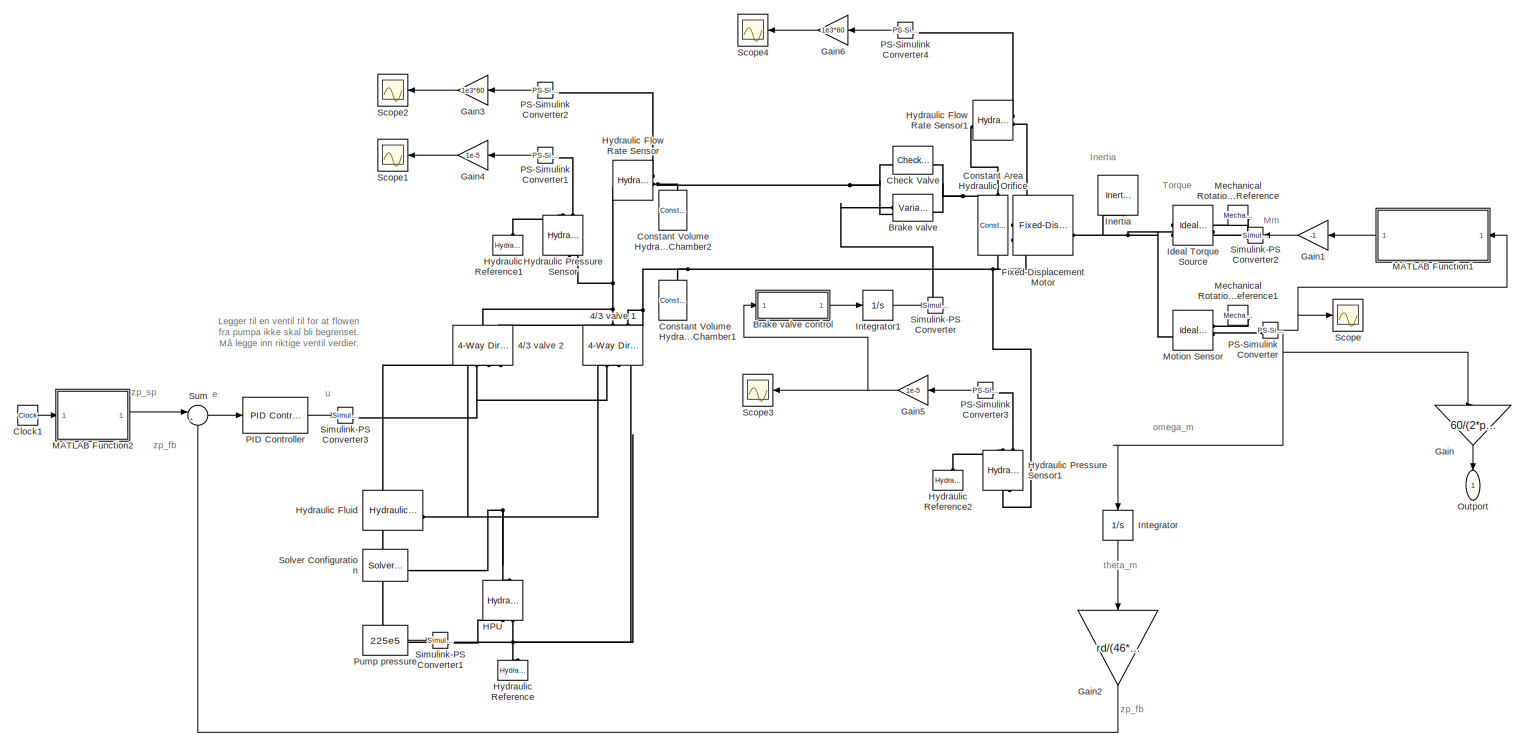
[diagram: root canvas - part 1/1, most of the canvas]
MODEL slx_333f0d7081e0
KIND model
CONFIG AbsTol = auto
CONFIG EnableMultiTasking = off
CONFIG FixedStep = auto
CONFIG MaxStep = auto
CONFIG MinStep = auto
CONFIG RelTol = 1e-3
CONFIG SampleTimeConstraint = Unconstrained
CONFIG SolverName = VariableStepAuto
CONFIG StartTime = 0.0
CONFIG StopTime = 20
WORKSPACE source: MATLAB code (in-file)
WORKSPACE rho = 860
WORKSPACE P_r = 70e5  (= 7000000)
WORKSPACE Cd = 0.7
WORKSPACE Q_r = 200/6e4  (= 0.00333333333333)
WORKSPACE AdMax = Q_r/Cd/sqrt(2/rho*P_r/2)
WORKSPACE g = 9.81
WORKSPACE zw = 0.8
WORKSPACE tw = 10
WORKSPACE ig = 46
WORKSPACE m = 9000
WORKSPACE mueq = 0.15
WORKSPACE dd = 0.45
WORKSPACE nyv = 0.92
WORKSPACE rd = dd/2  (= 0.225)
WORKSPACE omega0 = 5
WORKSPACE omegap = 1500
WORKSPACE nsh = 3
WORKSPACE gearrationsh = nsh.*2
BLOCK [Reference] 4//3 valve 1  REF=sh_lib/Valves/Directional Valves/4-Way Directional
Valve
  NameLocation = right
  SourceBlock = sh_lib/Valves/Directional Valves/4-Way Directional\nValve
  SourceType = 4-Way Directional\nValve
BLOCK [Reference] 4//3 valve 2  REF=sh_lib/Valves/Directional Valves/4-Way Directional
Valve
  NameLocation = right
  SourceBlock = sh_lib/Valves/Directional Valves/4-Way Directional\nValve
  SourceType = 4-Way Directional\nValve
BLOCK [Reference] Brake valve  REF=sh_lib/Orifices/Variable Orifice
  SourceBlock = sh_lib/Orifices/Variable Orifice
  SourceType = Variable Orifice
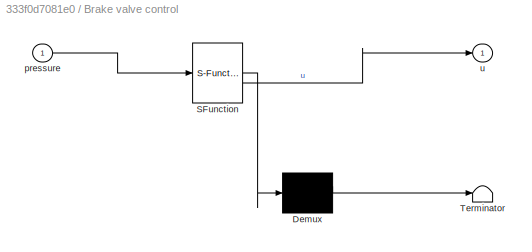
BLOCK [SubSystem] Brake valve control
  ErrorFcn = Stateflow.Translate.translate
  LibrarySourceBlock = simulink/User-Defined\nFunctions/MATLAB Function
  PermitHierarchicalResolution = ExplicitOnly
  SFBlockType = MATLAB Function
  TreatAsAtomicUnit = on
BLOCK [Demux] Brake valve control/ Demux 
  Outputs = 1
BLOCK [S-Function] Brake valve control/ SFunction 
  EnableBusSupport = on
  FunctionName = sf_sfun
  PortCounts = [1 2]
  SFcnIsStateOwnerBlock = off
  SFunctionDeploymentMode = off
  Tag = Stateflow S-Function 2
BLOCK [Terminator] Brake valve control/ Terminator 
BLOCK [Inport] Brake valve control/pressure
BLOCK [Outport] Brake valve control/u
BLOCK [Reference] Check Valve  REF=sh_lib/Valves/Directional Valves/Check Valve
  SourceBlock = sh_lib/Valves/Directional Valves/Check Valve
  SourceType = Check Valve
BLOCK [Clock] Clock1
BLOCK [Reference] Constant Area Hydraulic Orifice  REF=fl_lib/Hydraulic/Hydraulic Elements/Constant Area
Hydraulic Orifice
  NameLocation = left
  SourceBlock = fl_lib/Hydraulic/Hydraulic Elements/Constant Area\nHydraulic Orifice
  SourceType = Constant Area\nHydraulic Orifice
BLOCK [Reference] Constant Volume Hydraulic Chamber1  REF=fl_lib/Hydraulic/Hydraulic Elements/Constant Volume
Hydraulic Chamber
  NameLocation = right
  SourceBlock = fl_lib/Hydraulic/Hydraulic Elements/Constant Volume\nHydraulic Chamber
  SourceType = Constant Volume\nHydraulic Chamber
BLOCK [Reference] Constant Volume Hydraulic Chamber2  REF=fl_lib/Hydraulic/Hydraulic Elements/Constant Volume
Hydraulic Chamber
  NameLocation = right
  SourceBlock = fl_lib/Hydraulic/Hydraulic Elements/Constant Volume\nHydraulic Chamber
  SourceType = Constant Volume\nHydraulic Chamber
BLOCK [Reference] Fixed-Displacement Motor  REF=sh_lib/Pumps and Motors/Fixed-Displacement
Motor
  SourceBlock = sh_lib/Pumps and Motors/Fixed-Displacement\nMotor
  SourceType = Fixed-Displacement\nMotor
BLOCK [Gain] Gain
  Gain = 60/(2*pi)
  NameLocation = left
BLOCK [Gain] Gain1
  Gain = -1
  NameLocation = top
BLOCK [Gain] Gain2
  Gain = rd/(46*6)
  NameLocation = left
BLOCK [Gain] Gain3
  Gain = 1e3*60
  NameLocation = top
BLOCK [Gain] Gain4
  Gain = 1e-5
  NameLocation = top
BLOCK [Gain] Gain5
  Gain = 1e-5
  NameLocation = top
BLOCK [Gain] Gain6
  Gain = 1e3*60
  NameLocation = top
BLOCK [Reference] HPU  REF=fl_lib/Hydraulic/Hydraulic Sources/Hydraulic Pressure
Source
  NameLocation = right
  SourceBlock = fl_lib/Hydraulic/Hydraulic Sources/Hydraulic Pressure\nSource
  SourceType = Hydraulic Pressure\nSource
BLOCK [Reference] Hydraulic Flow Rate Sensor  REF=fl_lib/Hydraulic/Hydraulic Sensors/Hydraulic Flow Rate
Sensor
  SourceBlock = fl_lib/Hydraulic/Hydraulic Sensors/Hydraulic Flow Rate\nSensor
  SourceType = Hydraulic Flow Rate\nSensor
BLOCK [Reference] Hydraulic Flow Rate Sensor1  REF=fl_lib/Hydraulic/Hydraulic Sensors/Hydraulic Flow Rate
Sensor
  SourceBlock = fl_lib/Hydraulic/Hydraulic Sensors/Hydraulic Flow Rate\nSensor
  SourceType = Hydraulic Flow Rate\nSensor
BLOCK [Reference] Hydraulic Fluid  REF=sh_lib/Hydraulic Utilities/Hydraulic Fluid
  SourceBlock = sh_lib/Hydraulic Utilities/Hydraulic Fluid
  SourceType = Hydraulic Fluid
BLOCK [Reference] Hydraulic Pressure Sensor  REF=fl_lib/Hydraulic/Hydraulic Sensors/Hydraulic Pressure
Sensor
  NameLocation = right
  SourceBlock = fl_lib/Hydraulic/Hydraulic Sensors/Hydraulic Pressure\nSensor
  SourceType = Hydraulic Pressure\nSensor
BLOCK [Reference] Hydraulic Pressure Sensor1  REF=fl_lib/Hydraulic/Hydraulic Sensors/Hydraulic Pressure
Sensor
  NameLocation = right
  SourceBlock = fl_lib/Hydraulic/Hydraulic Sensors/Hydraulic Pressure\nSensor
  SourceType = Hydraulic Pressure\nSensor
BLOCK [Reference] Hydraulic Reference  REF=fl_lib/Hydraulic/Hydraulic Elements/Hydraulic Reference
  NameLocation = right
  SourceBlock = fl_lib/Hydraulic/Hydraulic Elements/Hydraulic Reference
  SourceType = Hydraulic Reference
BLOCK [Reference] Hydraulic Reference1  REF=fl_lib/Hydraulic/Hydraulic Elements/Hydraulic Reference
  NameLocation = right
  SourceBlock = fl_lib/Hydraulic/Hydraulic Elements/Hydraulic Reference
  SourceType = Hydraulic Reference
BLOCK [Reference] Hydraulic Reference2  REF=fl_lib/Hydraulic/Hydraulic Elements/Hydraulic Reference
  NameLocation = right
  SourceBlock = fl_lib/Hydraulic/Hydraulic Elements/Hydraulic Reference
  SourceType = Hydraulic Reference
BLOCK [Reference] Ideal Torque Source  REF=fl_lib/Mechanical/Mechanical Sources/Ideal Torque Source
  NameLocation = top
  SourceBlock = fl_lib/Mechanical/Mechanical Sources/Ideal Torque Source
  SourceType = Ideal Torque Source
BLOCK [Reference] Inertia  REF=fl_lib/Mechanical/Rotational Elements/Inertia
  NameLocation = left
  SourceBlock = fl_lib/Mechanical/Rotational Elements/Inertia
  SourceType = Inertia
  Tag = Factory Generic
BLOCK [Integrator] Integrator
  NameLocation = left
BLOCK [Integrator] Integrator1
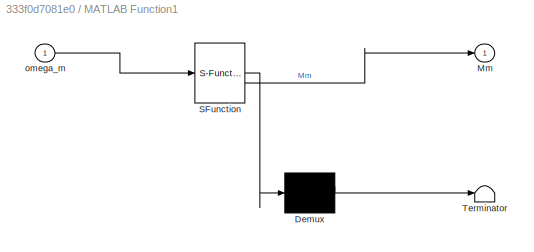
BLOCK [SubSystem] MATLAB Function1
  ErrorFcn = Stateflow.Translate.translate
  LibrarySourceBlock = simulink/User-Defined\nFunctions/MATLAB Function
  NameLocation = top
  PermitHierarchicalResolution = ExplicitOnly
  SFBlockType = MATLAB Function
  TreatAsAtomicUnit = on
BLOCK [Demux] MATLAB Function1/ Demux 
  Outputs = 1
BLOCK [S-Function] MATLAB Function1/ SFunction 
  EnableBusSupport = on
  FunctionName = sf_sfun
  PortCounts = [1 2]
  SFcnIsStateOwnerBlock = off
  SFunctionDeploymentMode = off
  Tag = Stateflow S-Function 1
BLOCK [Terminator] MATLAB Function1/ Terminator 
BLOCK [Outport] MATLAB Function1/Mm
BLOCK [Inport] MATLAB Function1/omega_m
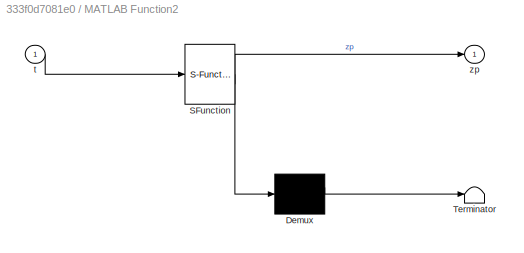
BLOCK [SubSystem] MATLAB Function2
  ErrorFcn = Stateflow.Translate.translate
  LibrarySourceBlock = simulink/User-Defined\nFunctions/MATLAB Function
  PermitHierarchicalResolution = ExplicitOnly
  SFBlockType = MATLAB Function
  TreatAsAtomicUnit = on
BLOCK [Demux] MATLAB Function2/ Demux 
  Outputs = 1
BLOCK [S-Function] MATLAB Function2/ SFunction 
  EnableBusSupport = on
  FunctionName = sf_sfun
  PortCounts = [1 2]
  SFcnIsStateOwnerBlock = off
  SFunctionDeploymentMode = off
  Tag = Stateflow S-Function 3
BLOCK [Terminator] MATLAB Function2/ Terminator 
BLOCK [Inport] MATLAB Function2/t
BLOCK [Outport] MATLAB Function2/zp
BLOCK [Reference] Mechanical Rotational Reference  REF=fl_lib/Mechanical/Rotational Elements/Mechanical
Rotational Reference
  NameLocation = top
  SourceBlock = fl_lib/Mechanical/Rotational Elements/Mechanical\nRotational Reference
  SourceType = Mechanical\nRotational Reference
BLOCK [Reference] Mechanical Rotational Reference1  REF=fl_lib/Mechanical/Rotational Elements/Mechanical
Rotational Reference
  NameLocation = top
  SourceBlock = fl_lib/Mechanical/Rotational Elements/Mechanical\nRotational Reference
  SourceType = Mechanical\nRotational Reference
BLOCK [Reference] Motion Sensor  REF=fl_lib/Mechanical/Mechanical Sensors/Ideal Rotational
Motion Sensor
  SourceBlock = fl_lib/Mechanical/Mechanical Sensors/Ideal Rotational\nMotion Sensor
  SourceType = Ideal Rotational\nMotion Sensor
  Tag = Factory Generic
BLOCK [Outport] Outport
  NameLocation = left
  SignalName = RPM
BLOCK [Reference] PID Controller  REF=slpidlib/PID Controller
  LibrarySourceBlock = simulink/Continuous/PID Controller
  SourceBlock = slpidlib/PID Controller
  SourceType = PID 1dof
BLOCK [Reference] PS-Simulink Converter  REF=nesl_utility/PS-Simulink
Converter
  SourceBlock = nesl_utility/PS-Simulink\nConverter
  SourceType = PS-Simulink\nConverter
BLOCK [Reference] PS-Simulink Converter1  REF=nesl_utility/PS-Simulink
Converter
  NameLocation = top
  SourceBlock = nesl_utility/PS-Simulink\nConverter
  SourceType = PS-Simulink\nConverter
BLOCK [Reference] PS-Simulink Converter2  REF=nesl_utility/PS-Simulink
Converter
  NameLocation = top
  SourceBlock = nesl_utility/PS-Simulink\nConverter
  SourceType = PS-Simulink\nConverter
BLOCK [Reference] PS-Simulink Converter3  REF=nesl_utility/PS-Simulink
Converter
  NameLocation = top
  SourceBlock = nesl_utility/PS-Simulink\nConverter
  SourceType = PS-Simulink\nConverter
BLOCK [Reference] PS-Simulink Converter4  REF=nesl_utility/PS-Simulink
Converter
  NameLocation = top
  SourceBlock = nesl_utility/PS-Simulink\nConverter
  SourceType = PS-Simulink\nConverter
BLOCK [Constant] Pump pressure
  Value = 225e5
BLOCK [Scope] Scope
  Floating = off
  NumInputPorts = 1
  ScopeSpecificationString = Simulink.scopes.TimeScopeBlockCfg('CurrentConfiguration', extmgr.ConfigurationSet(extmgr.Configuration('Core','General UI',true),extmgr.Configuration('Core','Source UI',true),extmgr.Configuration('Sources','WiredSimulink',true),extmgr.Configuration('Visuals','Time Domain',true,'SerializedDisplays',{struct('MinYLimReal','-690.31009','MaxYLimReal','784.25965','YLabelReal','','MinYLimMag',' 0.00000',...<+1384ch>
BLOCK [Scope] Scope1
  Floating = off
  NameLocation = top
  NumInputPorts = 1
  ScopeSpecificationString = Simulink.scopes.TimeScopeBlockCfg('CurrentConfiguration', extmgr.ConfigurationSet(extmgr.Configuration('Core','General UI',true),extmgr.Configuration('Core','Source UI',true),extmgr.Configuration('Sources','WiredSimulink',true,'DataLoggingVariableName','ScopeData1'),extmgr.Configuration('Visuals','Time Domain',true,'SerializedDisplays',{struct('MinYLimReal','-30.92137','MaxYLimReal','278.29237','Y...<+1403ch>
BLOCK [Scope] Scope2
  Floating = off
  NameLocation = top
  NumInputPorts = 1
  ScopeSpecificationString = Simulink.scopes.TimeScopeBlockCfg('CurrentConfiguration', extmgr.ConfigurationSet(extmgr.Configuration('Core','General UI',true),extmgr.Configuration('Core','Source UI',true),extmgr.Configuration('Sources','WiredSimulink',true,'DataLoggingVariableName','ScopeData2'),extmgr.Configuration('Visuals','Time Domain',true,'SerializedDisplays',{struct('MinYLimReal','-185.33606','MaxYLimReal','210.37591','...<+1407ch>
BLOCK [Scope] Scope3
  Floating = off
  NameLocation = top
  NumInputPorts = 1
  ScopeSpecificationString = Simulink.scopes.TimeScopeBlockCfg('CurrentConfiguration', extmgr.ConfigurationSet(extmgr.Configuration('Core','General UI',true),extmgr.Configuration('Core','Source UI',true),extmgr.Configuration('Sources','WiredSimulink',true,'DataLoggingVariableName','ScopeData1'),extmgr.Configuration('Visuals','Time Domain',true,'SerializedDisplays',{struct('MinYLimReal','-30.92137','MaxYLimReal','278.29237','Y...<+1403ch>
BLOCK [Scope] Scope4
  Floating = off
  NameLocation = top
  NumInputPorts = 1
  ScopeSpecificationString = Simulink.scopes.TimeScopeBlockCfg('CurrentConfiguration', extmgr.ConfigurationSet(extmgr.Configuration('Core','General UI',true),extmgr.Configuration('Core','Source UI',true),extmgr.Configuration('Sources','WiredSimulink',true,'DataLoggingVariableName','ScopeData2'),extmgr.Configuration('Visuals','Time Domain',true,'SerializedDisplays',{struct('MinYLimReal','-185.33606','MaxYLimReal','210.37591','...<+1407ch>
BLOCK [Reference] Simulink-PS Converter  REF=nesl_utility/Simulink-PS
Converter
  SourceBlock = nesl_utility/Simulink-PS\nConverter
  SourceType = Simulink-PS\nConverter
BLOCK [Reference] Simulink-PS Converter1  REF=nesl_utility/Simulink-PS
Converter
  SourceBlock = nesl_utility/Simulink-PS\nConverter
  SourceType = Simulink-PS\nConverter
BLOCK [Reference] Simulink-PS Converter2  REF=nesl_utility/Simulink-PS
Converter
  NameLocation = top
  SourceBlock = nesl_utility/Simulink-PS\nConverter
  SourceType = Simulink-PS\nConverter
BLOCK [Reference] Simulink-PS Converter3  REF=nesl_utility/Simulink-PS
Converter
  SourceBlock = nesl_utility/Simulink-PS\nConverter
  SourceType = Simulink-PS\nConverter
BLOCK [Reference] Solver Configuration  REF=nesl_utility/Solver
Configuration
  SourceBlock = nesl_utility/Solver\nConfiguration
  SourceType = Solver\nConfiguration
BLOCK [Sum] Sum
  Inputs = |+-
ANNOTATION (root): Inertia
ANNOTATION (root): Legger til en ventil til for at flowen fra pumpa ikke skal bli begrenset. Må legge inn riktige ventil verdier.
ANNOTATION (root): Mm
ANNOTATION (root): Torque
ANNOTATION (root): e
ANNOTATION (root): omega_m
ANNOTATION (root): theta_m
ANNOTATION (root): u
ANNOTATION (root): zp_fb
ANNOTATION (root): zp_sp
LINE Brake valve control:1 -> Integrator1:1
LINE Clock1:1 -> MATLAB Function2:1
LINE Gain1:1 -> Simulink-PS Converter2:1
LINE Gain2:1 -> Sum:2
LINE Gain3:1 -> Scope2:1
LINE Gain4:1 -> Scope1:1
NET Gain5:1 -> Brake valve control:1, Scope3:1
LINE Gain6:1 -> Scope4:1
LINE Gain:1 -> Outport:1
LINE Integrator1:1 -> Simulink-PS Converter:1
LINE Integrator:1 -> Gain2:1
LINE MATLAB Function1:1 -> Gain1:1
LINE MATLAB Function2:1 -> Sum:1
LINE PID Controller:1 -> Simulink-PS Converter3:1
LINE PS-Simulink Converter1:1 -> Gain4:1
LINE PS-Simulink Converter2:1 -> Gain3:1
LINE PS-Simulink Converter3:1 -> Gain5:1
LINE PS-Simulink Converter4:1 -> Gain6:1
NET PS-Simulink Converter:1 -> Gain:1, Integrator:1, MATLAB Function1:1, Scope:1
LINE Pump pressure:1 -> Simulink-PS Converter1:1
LINE Sum:1 -> PID Controller:1
PNET net1: 4//3 valve 1:LConn1 -- 4//3 valve 2:LConn1 -- Hydraulic Flow Rate Sensor:LConn1 -- Hydraulic Pressure Sensor:LConn1
PNET net2: 4//3 valve 1:LConn2 -- 4//3 valve 2:LConn2 -- Constant Area Hydraulic Orifice:RConn1 -- Constant Volume Hydraulic Chamber1:LConn1 -- Fixed-Displacement Motor:LConn2 -- Hydraulic Pressure Sensor1:LConn1
PNET net3: 4//3 valve 1:RConn1 -- 4//3 valve 2:RConn1 -- Simulink-PS Converter3:RConn1
PNET net4: 4//3 valve 1:RConn2 -- 4//3 valve 2:RConn2 -- HPU:LConn1 -- Hydraulic Fluid:RConn1 -- Solver Configuration:RConn1
PNET net5: 4//3 valve 1:RConn3 -- 4//3 valve 2:RConn3 -- HPU:RConn2 -- Hydraulic Reference:LConn1
PLINE Brake valve:LConn1 -- Simulink-PS Converter:RConn1
PNET net6: Brake valve:LConn2 -- Check Valve:LConn1 -- Constant Volume Hydraulic Chamber2:LConn1 -- Hydraulic Flow Rate Sensor:RConn2
PNET net7: Brake valve:RConn1 -- Check Valve:RConn1 -- Constant Area Hydraulic Orifice:LConn1 -- Hydraulic Flow Rate Sensor1:LConn1
PLINE Fixed-Displacement Motor:LConn1 -- Hydraulic Flow Rate Sensor1:RConn2
PNET net8: Fixed-Displacement Motor:RConn1 -- Ideal Torque Source:LConn1 -- Inertia:LConn1 -- Motion Sensor:LConn1
PLINE HPU:RConn1 -- Simulink-PS Converter1:RConn1
PLINE Hydraulic Flow Rate Sensor1:RConn1 -- PS-Simulink Converter4:LConn1
PLINE Hydraulic Flow Rate Sensor:RConn1 -- PS-Simulink Converter2:LConn1
PLINE Hydraulic Pressure Sensor1:RConn1 -- Hydraulic Reference2:LConn1
PLINE Hydraulic Pressure Sensor1:RConn2 -- PS-Simulink Converter3:LConn1
PLINE Hydraulic Pressure Sensor:RConn1 -- Hydraulic Reference1:LConn1
PLINE Hydraulic Pressure Sensor:RConn2 -- PS-Simulink Converter1:LConn1
PLINE Ideal Torque Source:RConn1 -- Simulink-PS Converter2:RConn1
PLINE Ideal Torque Source:RConn2 -- Mechanical Rotational Reference:LConn1
PLINE Mechanical Rotational Reference1:LConn1 -- Motion Sensor:RConn1
PLINE Motion Sensor:RConn2 -- PS-Simulink Converter:LConn1
note: NET lines group one-source signal fan-out (src -> all destinations, sorted); 1:1 wires keep LINE; PNET lines group multi-terminal physical nets as a canonical sorted terminal list (undirected conserving connections); 2-terminal nets keep the pairwise PLINE form
CHART Brake valve control states=1 transitions=1
  STATE_LABEL 'eML_blk_kernel()'
  STATE_LABEL 'SCRIPT:\nfunction u = fcn(pressure)\n\nif(pressure > 30)\n    u = 1;\nelse\n    u = 0;\nend'
CHART MATLAB Function2 states=1 transitions=1
  STATE_LABEL 'eML_blk_kernel()'
  STATE_LABEL 'SCRIPT:\nfunction zp = z_height(t)\n\nz_w = 0.8; % m\nT_w = 10; % s\n\nzp = z_w * sin((2*pi*t)/T_w);'
CHART MATLAB Function1 states=1 transitions=1
  STATE_LABEL 'eML_blk_kernel()'
  STATE_LABEL 'SCRIPT:\nfunction Mm = omega_m2Mm(omega_m)\n\nn_sh = 3; % -\ni_g = 46; % -\nm_pl = 9000; % kg\nd_D = 0.45; % m\nmu_eq = 0.15; % -\nomega_0 = 5; % rad/s\ng = 9.81; % m/(s*s)\n\nMm = (m_pl*g*d_D)/(2*n_sh*2*i_g) * (1 + mu_eq * tanh(omega_m/omega_0));'
CHART  states=0 transitions=0
CHART  states=0 transitions=0
CHART  states=0 transitions=0
